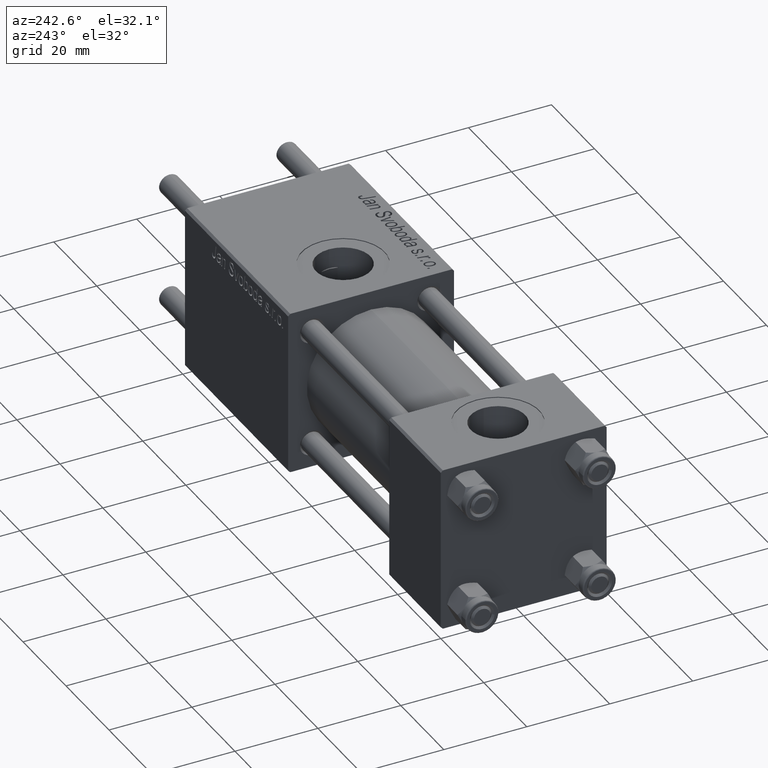
[diagram: clean part render]
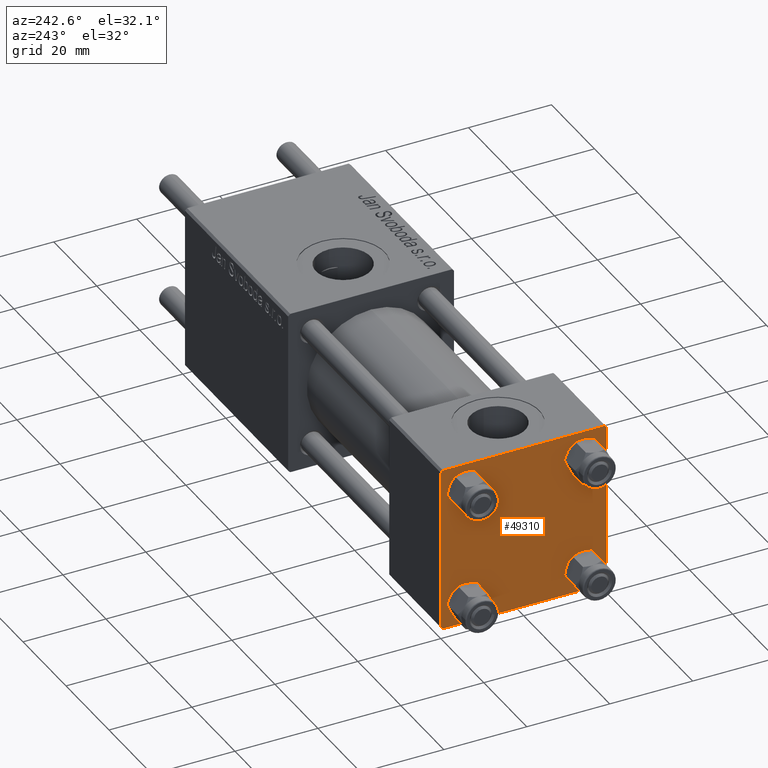
[diagram: same view with one face highlighted and labeled with its STEP entity id]
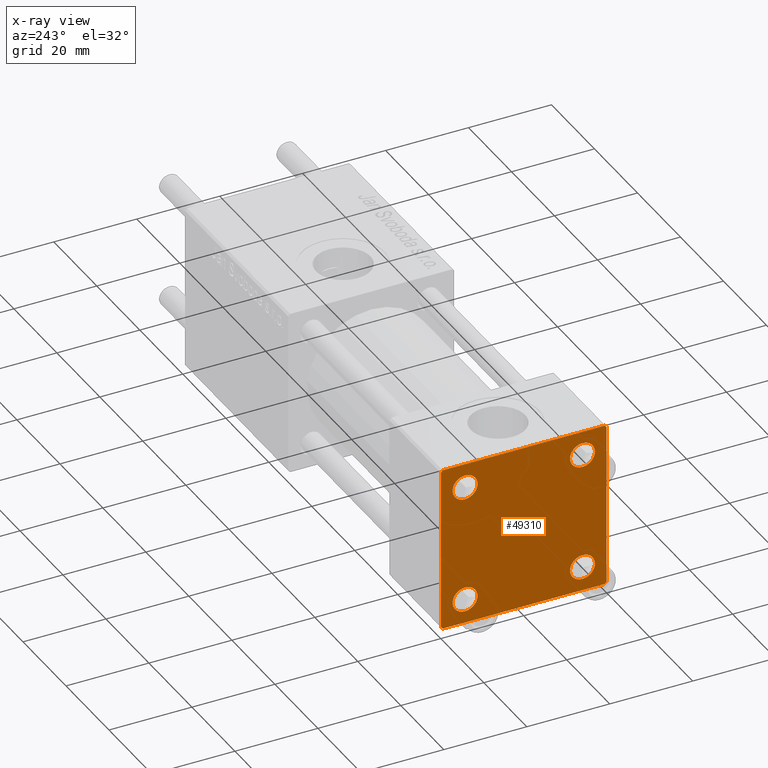
[diagram: x-ray of the same camera — body ghosted, the highlighted face saturated]
A machine part, auxiliary view. The second image highlights one B-rep face of the part: STEP entity #49310.
The next image is the same camera in x-ray: the body ghosted, the highlighted face saturated — about 0% of this face is hidden behind the body in this view.
In plain terms, the highlighted planar face has unit normal (-1, 0, 0).
Its self-contained STEP definition (entity closure, byte-faithful):
#1034 = CARTESIAN_POINT ( 'NONE',  ( 0.000000000000000000, -19.49999999999999289, 19.99999999999998934 ) ) ;
#1346 = CIRCLE ( 'NONE', #9619, 2.999999999999983569 ) ;
#1682 = DIRECTION ( 'NONE',  ( 0.000000000000000000, 0.000000000000000000, 1.000000000000000000 ) ) ;
#1857 = VERTEX_POINT ( 'NONE', #53544 ) ;
#2792 = CARTESIAN_POINT ( 'NONE',  ( 0.000000000000000000, 14.14999999999999858, -11.15000000000001812 ) ) ;
#2813 = DIRECTION ( 'NONE',  ( 1.000000000000000000, 0.000000000000000000, 0.000000000000000000 ) ) ;
#3163 = EDGE_CURVE ( 'NONE', #53970, #21979, #18594, .T. ) ;
#4207 = AXIS2_PLACEMENT_3D ( 'NONE', #52975, #23433, #36610 ) ;
#4229 = DIRECTION ( 'NONE',  ( 1.000000000000000000, 0.000000000000000000, 0.000000000000000000 ) ) ;
#4344 = CARTESIAN_POINT ( 'NONE',  ( 0.000000000000000000, 20.00000000000000000, -20.00000000000000711 ) ) ;
#4386 = CARTESIAN_POINT ( 'NONE',  ( -0.000000000000000000, 19.75000000000013500, 19.74999999999986144 ) ) ;
#5003 = DIRECTION ( 'NONE',  ( -0.000000000000000000, 0.000000000000000000, 1.000000000000000000 ) ) ;
#5063 = EDGE_CURVE ( 'NONE', #25827, #1857, #16046, .T. ) ;
#5678 = VECTOR ( 'NONE', #26744, 999.9999999999998863 ) ;
#5697 = DIRECTION ( 'NONE',  ( 0.000000000000000000, -1.000000000000000000, -2.602085213965210149E-16 ) ) ;
#7373 = CARTESIAN_POINT ( 'NONE',  ( 0.000000000000000000, -14.14999999999999503, 14.15000000000000391 ) ) ;
#7729 = CARTESIAN_POINT ( 'NONE',  ( 0.000000000000000000, 14.14999999999999858, 14.15000000000000036 ) ) ;
#7940 = FACE_BOUND ( 'NONE', #31980, .T. ) ;
#8006 = CARTESIAN_POINT ( 'NONE',  ( 0.000000000000000000, -19.50000000000000711, -20.00000000000000000 ) ) ;
#8061 = ORIENTED_EDGE ( 'NONE', *, *, #33497, .T. ) ;
#8764 = DIRECTION ( 'NONE',  ( -0.000000000000000000, -0.7071067811865524577, -0.7071067811865426878 ) ) ;
#9058 = ORIENTED_EDGE ( 'NONE', *, *, #45209, .T. ) ;
#9619 = AXIS2_PLACEMENT_3D ( 'NONE', #24428, #12094, #29283 ) ;
#9817 = CARTESIAN_POINT ( 'NONE',  ( 0.000000000000000000, -14.14999999999999503, -14.15000000000000391 ) ) ;
#9874 = DIRECTION ( 'NONE',  ( -1.000000000000000000, 0.000000000000000000, -0.000000000000000000 ) ) ;
#9990 = AXIS2_PLACEMENT_3D ( 'NONE', #17905, #9874, #5003 ) ;
#10338 = ORIENTED_EDGE ( 'NONE', *, *, #5063, .T. ) ;
#10548 = VECTOR ( 'NONE', #8764, 1000.000000000000000 ) ;
#10572 = LINE ( 'NONE', #15431, #19379 ) ;
#10869 = VERTEX_POINT ( 'NONE', #8006 ) ;
#11466 = CARTESIAN_POINT ( 'NONE',  ( 0.000000000000000000, 14.14999999999999858, -14.15000000000000036 ) ) ;
#11585 = ORIENTED_EDGE ( 'NONE', *, *, #40338, .T. ) ;
#11682 = CARTESIAN_POINT ( 'NONE',  ( 0.000000000000000000, 19.50000000000000711, -20.00000000000000711 ) ) ;
#11779 = ORIENTED_EDGE ( 'NONE', *, *, #40195, .T. ) ;
#11848 = VECTOR ( 'NONE', #26057, 1000.000000000000000 ) ;
#12094 = DIRECTION ( 'NONE',  ( 1.000000000000000000, 0.000000000000000000, 0.000000000000000000 ) ) ;
#12255 = CARTESIAN_POINT ( 'NONE',  ( 0.000000000000000000, -20.00000000000000355, 19.99999999999998934 ) ) ;
#12433 = CARTESIAN_POINT ( 'NONE',  ( 0.000000000000000000, -14.14999999999999503, -17.15000000000000924 ) ) ;
#13368 = ORIENTED_EDGE ( 'NONE', *, *, #17087, .T. ) ;
#13553 = DIRECTION ( 'NONE',  ( 1.000000000000000000, 0.000000000000000000, 0.000000000000000000 ) ) ;
#13716 = CIRCLE ( 'NONE', #21028, 2.999999999999983569 ) ;
#13834 = DIRECTION ( 'NONE',  ( 0.000000000000000000, 0.000000000000000000, 1.000000000000000000 ) ) ;
#13917 = CARTESIAN_POINT ( 'NONE',  ( -0.000000000000000000, 19.74999999999986855, -19.75000000000014211 ) ) ;
#14322 = EDGE_CURVE ( 'NONE', #48794, #34080, #1346, .T. ) ;
#15249 = ORIENTED_EDGE ( 'NONE', *, *, #40219, .T. ) ;
#15402 = EDGE_CURVE ( 'NONE', #22956, #31336, #45296, .T. ) ;
#15415 = CARTESIAN_POINT ( 'NONE',  ( 0.000000000000000000, 20.00000000000000000, 19.49999999999999289 ) ) ;
#15431 = CARTESIAN_POINT ( 'NONE',  ( 0.000000000000000000, 20.00000000000000000, 20.00000000000000000 ) ) ;
#16029 = AXIS2_PLACEMENT_3D ( 'NONE', #11466, #34105, #47549 ) ;
#16046 = CIRCLE ( 'NONE', #19737, 3.000000000000004441 ) ;
#17087 = EDGE_CURVE ( 'NONE', #22818, #52417, #34569, .T. ) ;
#17171 = CARTESIAN_POINT ( 'NONE',  ( 0.000000000000000000, -19.75000000000020961, -19.74999999999979394 ) ) ;
#17905 = CARTESIAN_POINT ( 'NONE',  ( 0.000000000000000000, 0.000000000000000000, 0.000000000000000000 ) ) ;
#17939 = EDGE_CURVE ( 'NONE', #31336, #22956, #45417, .T. ) ;
#18137 = LINE ( 'NONE', #4386, #5678 ) ;
#18594 = LINE ( 'NONE', #36642, #31740 ) ;
#18738 = FACE_BOUND ( 'NONE', #46608, .T. ) ;
#19249 = EDGE_CURVE ( 'NONE', #52757, #21979, #28788, .T. ) ;
#19379 = VECTOR ( 'NONE', #54993, 1000.000000000000000 ) ;
#19737 = AXIS2_PLACEMENT_3D ( 'NONE', #9817, #13553, #13834 ) ;
#20883 = VERTEX_POINT ( 'NONE', #15415 ) ;
#21028 = AXIS2_PLACEMENT_3D ( 'NONE', #7373, #34322, #55522 ) ;
#21838 = DIRECTION ( 'NONE',  ( 0.000000000000000000, -1.000000000000000000, 1.734723475976807094E-16 ) ) ;
#21925 = FACE_BOUND ( 'NONE', #31815, .T. ) ;
#21979 = VERTEX_POINT ( 'NONE', #1034 ) ;
#22818 = VERTEX_POINT ( 'NONE', #49531 ) ;
#22836 = CARTESIAN_POINT ( 'NONE',  ( 0.000000000000000000, -20.00000000000000355, 19.49999999999998224 ) ) ;
#22956 = VERTEX_POINT ( 'NONE', #2792 ) ;
#23433 = DIRECTION ( 'NONE',  ( 1.000000000000000000, 0.000000000000000000, 0.000000000000000000 ) ) ;
#23622 = ORIENTED_EDGE ( 'NONE', *, *, #14322, .T. ) ;
#24176 = CARTESIAN_POINT ( 'NONE',  ( 0.000000000000000000, 19.50000000000000000, 20.00000000000000000 ) ) ;
#24183 = AXIS2_PLACEMENT_3D ( 'NONE', #7729, #33554, #51024 ) ;
#24375 = VECTOR ( 'NONE', #29632, 1000.000000000000114 ) ;
#24428 = CARTESIAN_POINT ( 'NONE',  ( 0.000000000000000000, 14.14999999999999858, 14.15000000000000036 ) ) ;
#25827 = VERTEX_POINT ( 'NONE', #12433 ) ;
#26057 = DIRECTION ( 'NONE',  ( 0.000000000000000000, -0.7071067811865401342, 0.7071067811865549002 ) ) ;
#26710 = CIRCLE ( 'NONE', #36766, 2.999999999999983569 ) ;
#26744 = DIRECTION ( 'NONE',  ( 0.000000000000000000, 0.7071067811865425767, -0.7071067811865525687 ) ) ;
#27863 = ORIENTED_EDGE ( 'NONE', *, *, #39506, .T. ) ;
#28061 = VERTEX_POINT ( 'NONE', #39641 ) ;
#28788 = LINE ( 'NONE', #38525, #24375 ) ;
#29283 = DIRECTION ( 'NONE',  ( 0.000000000000000000, 0.000000000000000000, 1.000000000000000000 ) ) ;
#29433 = AXIS2_PLACEMENT_3D ( 'NONE', #42089, #2813, #1682 ) ;
#29632 = DIRECTION ( 'NONE',  ( -0.000000000000000000, 0.7071067811865500152, 0.7071067811865451302 ) ) ;
#30279 = VERTEX_POINT ( 'NONE', #31442 ) ;
#30357 = CIRCLE ( 'NONE', #29433, 3.000000000000004441 ) ;
#30854 = EDGE_LOOP ( 'NONE', ( #11779, #13368, #27863, #8061, #50972, #38291, #37383, #33717 ) ) ;
#31336 = VERTEX_POINT ( 'NONE', #33910 ) ;
#31442 = CARTESIAN_POINT ( 'NONE',  ( 0.000000000000000000, -14.14999999999999503, 11.15000000000002345 ) ) ;
#31740 = VECTOR ( 'NONE', #5697, 1000.000000000000000 ) ;
#31815 = EDGE_LOOP ( 'NONE', ( #23622, #9058 ) ) ;
#31980 = EDGE_LOOP ( 'NONE', ( #35008, #11585 ) ) ;
#33497 = EDGE_CURVE ( 'NONE', #10869, #28061, #56446, .T. ) ;
#33554 = DIRECTION ( 'NONE',  ( 1.000000000000000000, 0.000000000000000000, 0.000000000000000000 ) ) ;
#33717 = ORIENTED_EDGE ( 'NONE', *, *, #41688, .T. ) ;
#33910 = CARTESIAN_POINT ( 'NONE',  ( 0.000000000000000000, 14.14999999999999858, -17.14999999999998437 ) ) ;
#34080 = VERTEX_POINT ( 'NONE', #55316 ) ;
#34105 = DIRECTION ( 'NONE',  ( 1.000000000000000000, 0.000000000000000000, 0.000000000000000000 ) ) ;
#34322 = DIRECTION ( 'NONE',  ( 1.000000000000000000, 0.000000000000000000, 0.000000000000000000 ) ) ;
#34569 = LINE ( 'NONE', #13917, #10548 ) ;
#34620 = CARTESIAN_POINT ( 'NONE',  ( 0.000000000000000000, -14.14999999999999503, 14.15000000000000391 ) ) ;
#34710 = VECTOR ( 'NONE', #35959, 1000.000000000000000 ) ;
#35008 = ORIENTED_EDGE ( 'NONE', *, *, #52471, .T. ) ;
#35959 = DIRECTION ( 'NONE',  ( 0.000000000000000000, 8.673617379884036705E-17, -1.000000000000000000 ) ) ;
#36610 = DIRECTION ( 'NONE',  ( 0.000000000000000000, 0.000000000000000000, 1.000000000000000000 ) ) ;
#36642 = CARTESIAN_POINT ( 'NONE',  ( 0.000000000000000000, 20.00000000000000000, 20.00000000000000000 ) ) ;
#36766 = AXIS2_PLACEMENT_3D ( 'NONE', #34620, #4229, #43501 ) ;
#37383 = ORIENTED_EDGE ( 'NONE', *, *, #3163, .F. ) ;
#38291 = ORIENTED_EDGE ( 'NONE', *, *, #19249, .T. ) ;
#38452 = ORIENTED_EDGE ( 'NONE', *, *, #15402, .T. ) ;
#38525 = CARTESIAN_POINT ( 'NONE',  ( -0.000000000000000000, -19.74999999999992539, 19.75000000000006395 ) ) ;
#39506 = EDGE_CURVE ( 'NONE', #52417, #10869, #47624, .T. ) ;
#39641 = CARTESIAN_POINT ( 'NONE',  ( 0.000000000000000000, -20.00000000000000000, -19.49999999999999645 ) ) ;
#40195 = EDGE_CURVE ( 'NONE', #20883, #22818, #10572, .T. ) ;
#40219 = EDGE_CURVE ( 'NONE', #1857, #25827, #30357, .T. ) ;
#40338 = EDGE_CURVE ( 'NONE', #30279, #50269, #26710, .T. ) ;
#40741 = CARTESIAN_POINT ( 'NONE',  ( 0.000000000000000000, 14.14999999999999858, 17.14999999999998437 ) ) ;
#41581 = CIRCLE ( 'NONE', #24183, 2.999999999999983569 ) ;
#41688 = EDGE_CURVE ( 'NONE', #53970, #20883, #18137, .T. ) ;
#42089 = CARTESIAN_POINT ( 'NONE',  ( 0.000000000000000000, -14.14999999999999503, -14.15000000000000391 ) ) ;
#43501 = DIRECTION ( 'NONE',  ( 0.000000000000000000, 0.000000000000000000, 1.000000000000000000 ) ) ;
#44956 = VECTOR ( 'NONE', #21838, 1000.000000000000000 ) ;
#45209 = EDGE_CURVE ( 'NONE', #34080, #48794, #41581, .T. ) ;
#45296 = CIRCLE ( 'NONE', #16029, 2.999999999999983569 ) ;
#45417 = CIRCLE ( 'NONE', #4207, 2.999999999999983569 ) ;
#46608 = EDGE_LOOP ( 'NONE', ( #15249, #10338 ) ) ;
#47549 = DIRECTION ( 'NONE',  ( 0.000000000000000000, 0.000000000000000000, 1.000000000000000000 ) ) ;
#47624 = LINE ( 'NONE', #4344, #44956 ) ;
#48284 = LINE ( 'NONE', #12255, #34710 ) ;
#48794 = VERTEX_POINT ( 'NONE', #40741 ) ;
#48818 = ORIENTED_EDGE ( 'NONE', *, *, #17939, .T. ) ;
#49130 = FACE_BOUND ( 'NONE', #50909, .T. ) ;
#49307 = EDGE_CURVE ( 'NONE', #52757, #28061, #48284, .T. ) ;
#49310 = ADVANCED_FACE ( 'NONE', ( #7940, #18738, #49130, #21925, #52881 ), #53440, .T. ) ;
#49531 = CARTESIAN_POINT ( 'NONE',  ( 0.000000000000000000, 20.00000000000000000, -19.50000000000002132 ) ) ;
#50269 = VERTEX_POINT ( 'NONE', #53858 ) ;
#50909 = EDGE_LOOP ( 'NONE', ( #38452, #48818 ) ) ;
#50972 = ORIENTED_EDGE ( 'NONE', *, *, #49307, .F. ) ;
#51024 = DIRECTION ( 'NONE',  ( 0.000000000000000000, 0.000000000000000000, 1.000000000000000000 ) ) ;
#52417 = VERTEX_POINT ( 'NONE', #11682 ) ;
#52471 = EDGE_CURVE ( 'NONE', #50269, #30279, #13716, .T. ) ;
#52757 = VERTEX_POINT ( 'NONE', #22836 ) ;
#52881 = FACE_OUTER_BOUND ( 'NONE', #30854, .T. ) ;
#52975 = CARTESIAN_POINT ( 'NONE',  ( 0.000000000000000000, 14.14999999999999858, -14.15000000000000036 ) ) ;
#53440 = PLANE ( 'NONE',  #9990 ) ;
#53544 = CARTESIAN_POINT ( 'NONE',  ( 0.000000000000000000, -14.14999999999999503, -11.15000000000000036 ) ) ;
#53858 = CARTESIAN_POINT ( 'NONE',  ( 0.000000000000000000, -14.14999999999999503, 17.14999999999998792 ) ) ;
#53970 = VERTEX_POINT ( 'NONE', #24176 ) ;
#54993 = DIRECTION ( 'NONE',  ( 0.000000000000000000, 0.000000000000000000, -1.000000000000000000 ) ) ;
#55316 = CARTESIAN_POINT ( 'NONE',  ( 0.000000000000000000, 14.14999999999999858, 11.15000000000001990 ) ) ;
#55522 = DIRECTION ( 'NONE',  ( 0.000000000000000000, 0.000000000000000000, 1.000000000000000000 ) ) ;
#56446 = LINE ( 'NONE', #17171, #11848 ) ;